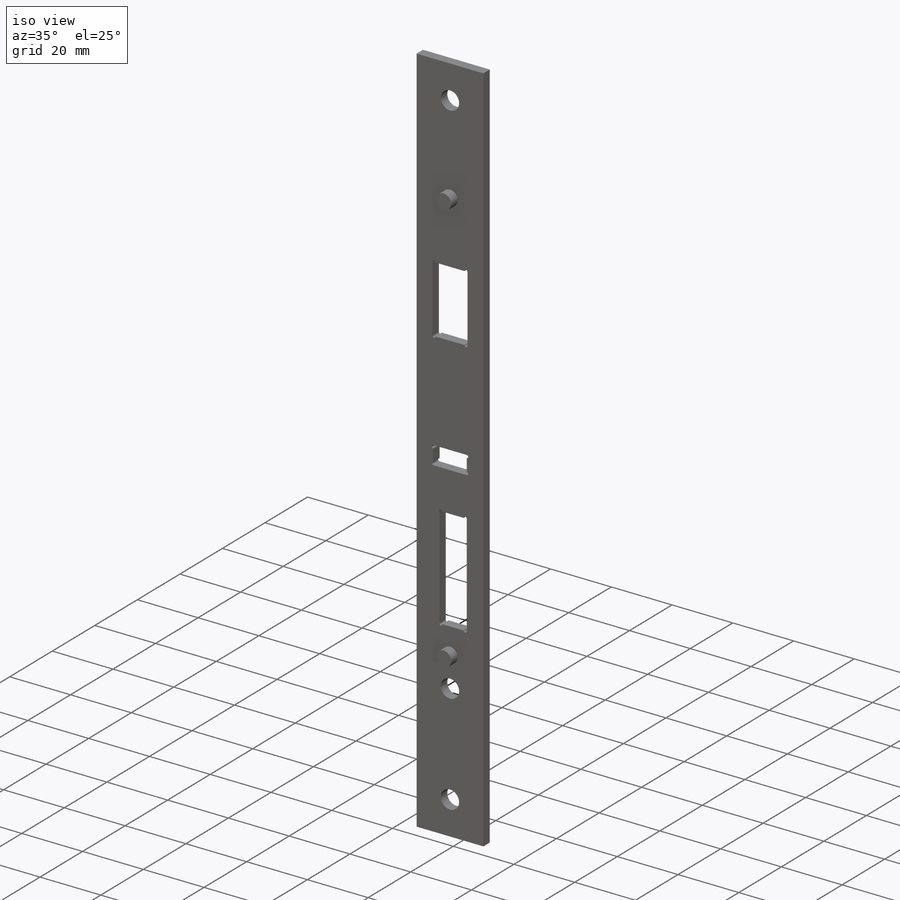
[diagram: iso view]
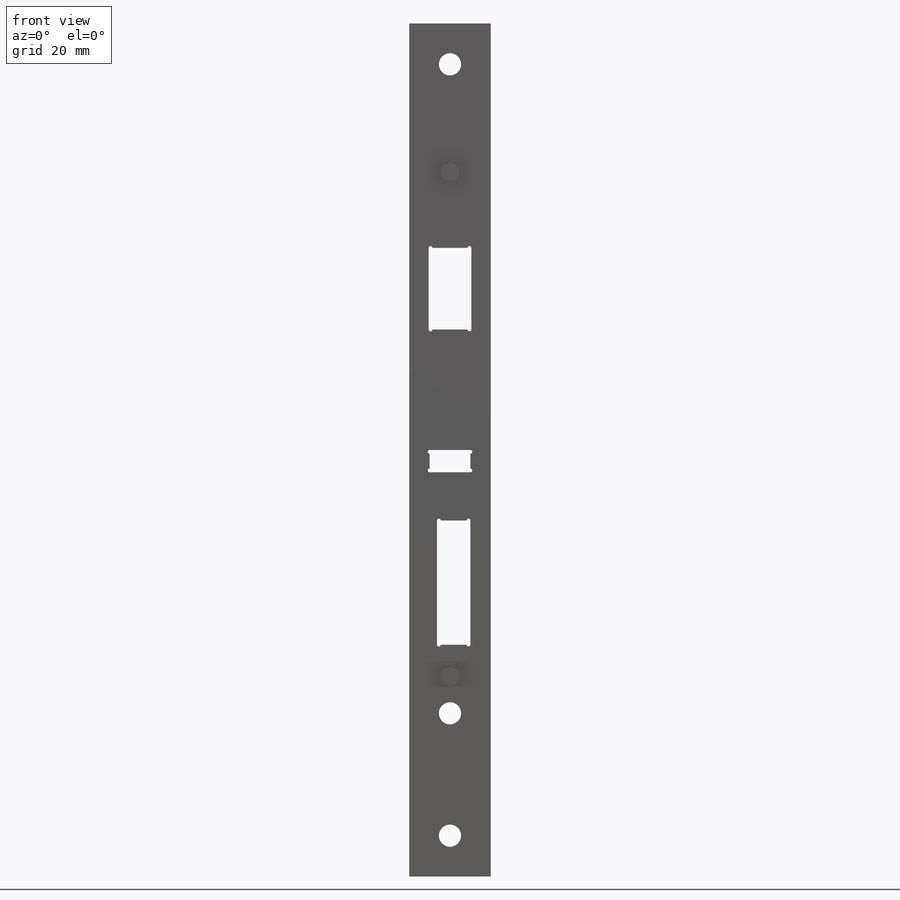
[diagram: front view]
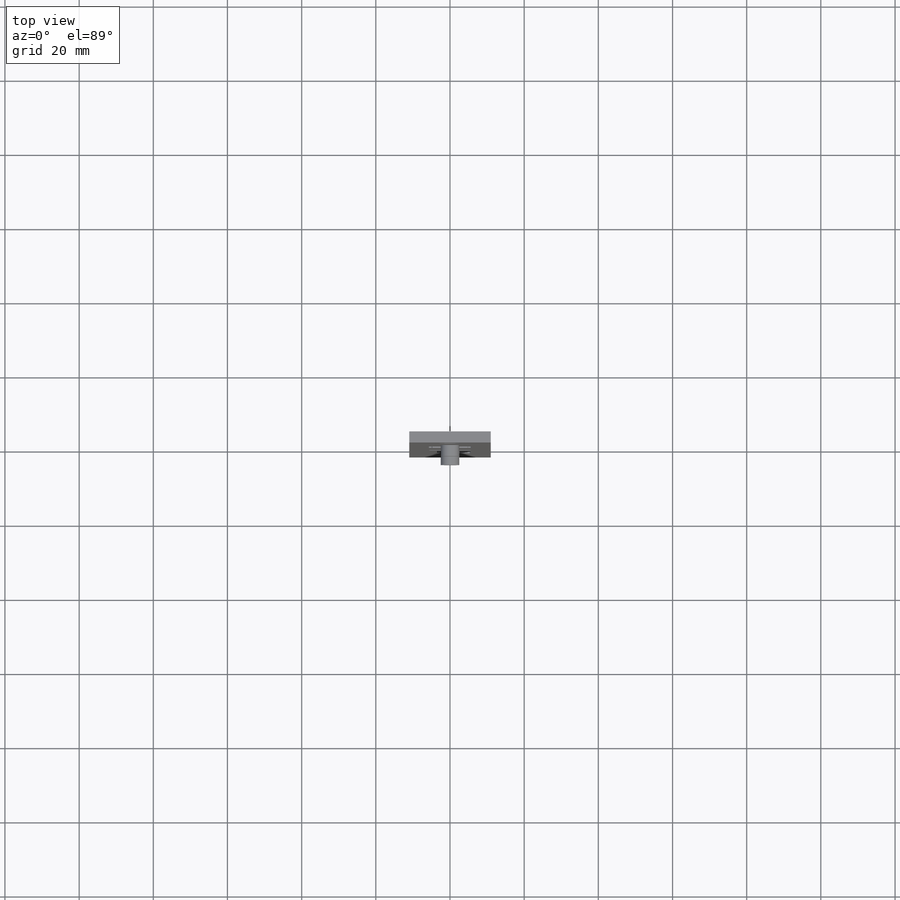
[diagram: top view]
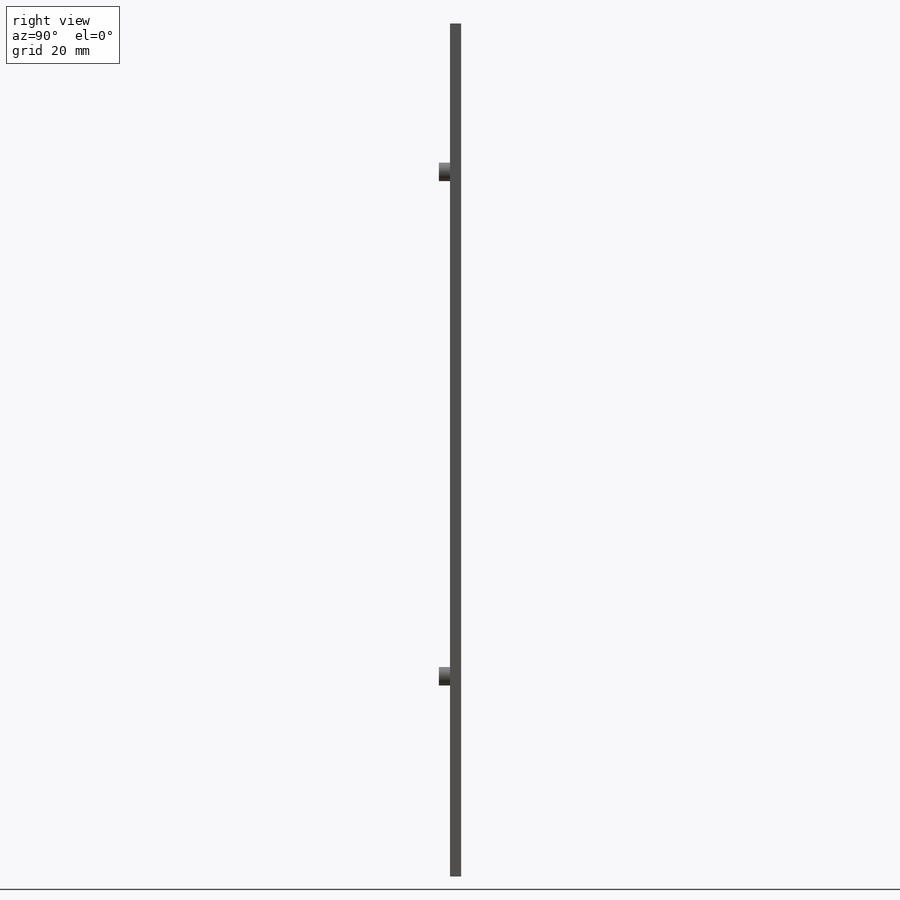
[diagram: right view]
SOLIDWORKS PART (.sldprt)
format: sldprt  version: not decoded by parser v0  size: 569,856 bytes
history: native  units: mm
features: sketch x7, plane x3, cut_extrude x3, extrude x2, material x1, hole x1 (+12 scaffold rows collapsed)
feature tree (29):
  scaffold x12  (default folders/planes/origin — collapsed)
  material  "Matériau <non spécifié>"
  plane  "Face"
  plane  "Dessus"
  plane  "Droite"
  sketch  "Esquisse1"  dims[D1=22.0mm D2=230.0mm]
  extrude  "Extrusion1"  Depth=3mm
  hole  "Diamètre du perçage Ø6.0 (6)1"  Diameter=6mm Depth=3mm
  sketch  "Esquisse3"  dims[c1.D1=11.0mm c1.D2=11.0mm c1.D3=172.0mm c1.D4=33.0mm c2.D3=11.0mm]
  sketch  "Esquisse5"  dims[hole-wizard template sketch: 46 standard entries collapsed; hole parameters kept: c15.Diamètre du perçage=6.0mm c15.Profondeur du perçage=3.0mm c15.D3=~14.816244mm c15.Angle de pointe=118.0deg]
  sketch  "Esquisse7"  dims[c1.D4=1.0mm c1.D5=1.0mm c1.D6=1.0mm c1.D7=1.0mm c1.D1=11.5mm c1.D2=23.0mm c1.D3=32.5mm c2.D1=11.5mm c2.D2=22.0mm]
  cut_extrude  "Enlèv. mat.-Extru.1"  [1 undecoded]
  sketch  "Esquisse8"  dims[c1.D3=1.0mm c1.D4=1.0mm c1.D8=0.5mm c1.D1=11.0mm c1.D2=6.0mm c2.D3=6.0mm c2.D5=115.0mm c2.D6=5.5mm c2.D7=11.0mm c2.D8=109.5mm c2.D9=114.5mm c3.D8=114.5mm]
  cut_extrude  "Enlèv. mat.-Extru.2"  [1 undecoded]
  sketch  "Esquisse9"  dims[c1.D4=1.0mm c1.D5=1.0mm c1.D6=1.0mm c2.D4=1.0mm c2.D5=0.5mm c2.D7=0.5mm c2.D1=9.0mm c2.D2=33.5mm c2.D3=134.0mm c3.D5=11.0mm c3.D7=4.5mm c4.D5=10.0mm]
  cut_extrude  "Enlèv. mat.-Extru.3"  [1 undecoded]
  sketch  "Esquisse10"  dims[D1=5.0mm D4=5.0mm D2=11.0mm D3=40.0mm D5=136.0mm D6=230.0mm]
  extrude  "Extrusion2"  Depth=3mm
decode coverage: 10 of 13 modeling features carry decoded parameters
note: ~ marks probable driven/reference dimensions
note: 3 parameter values undecoded
summary: no parameter record found for 3 features
note: suppression state not decoded; provenance and decode notes live in map.json
